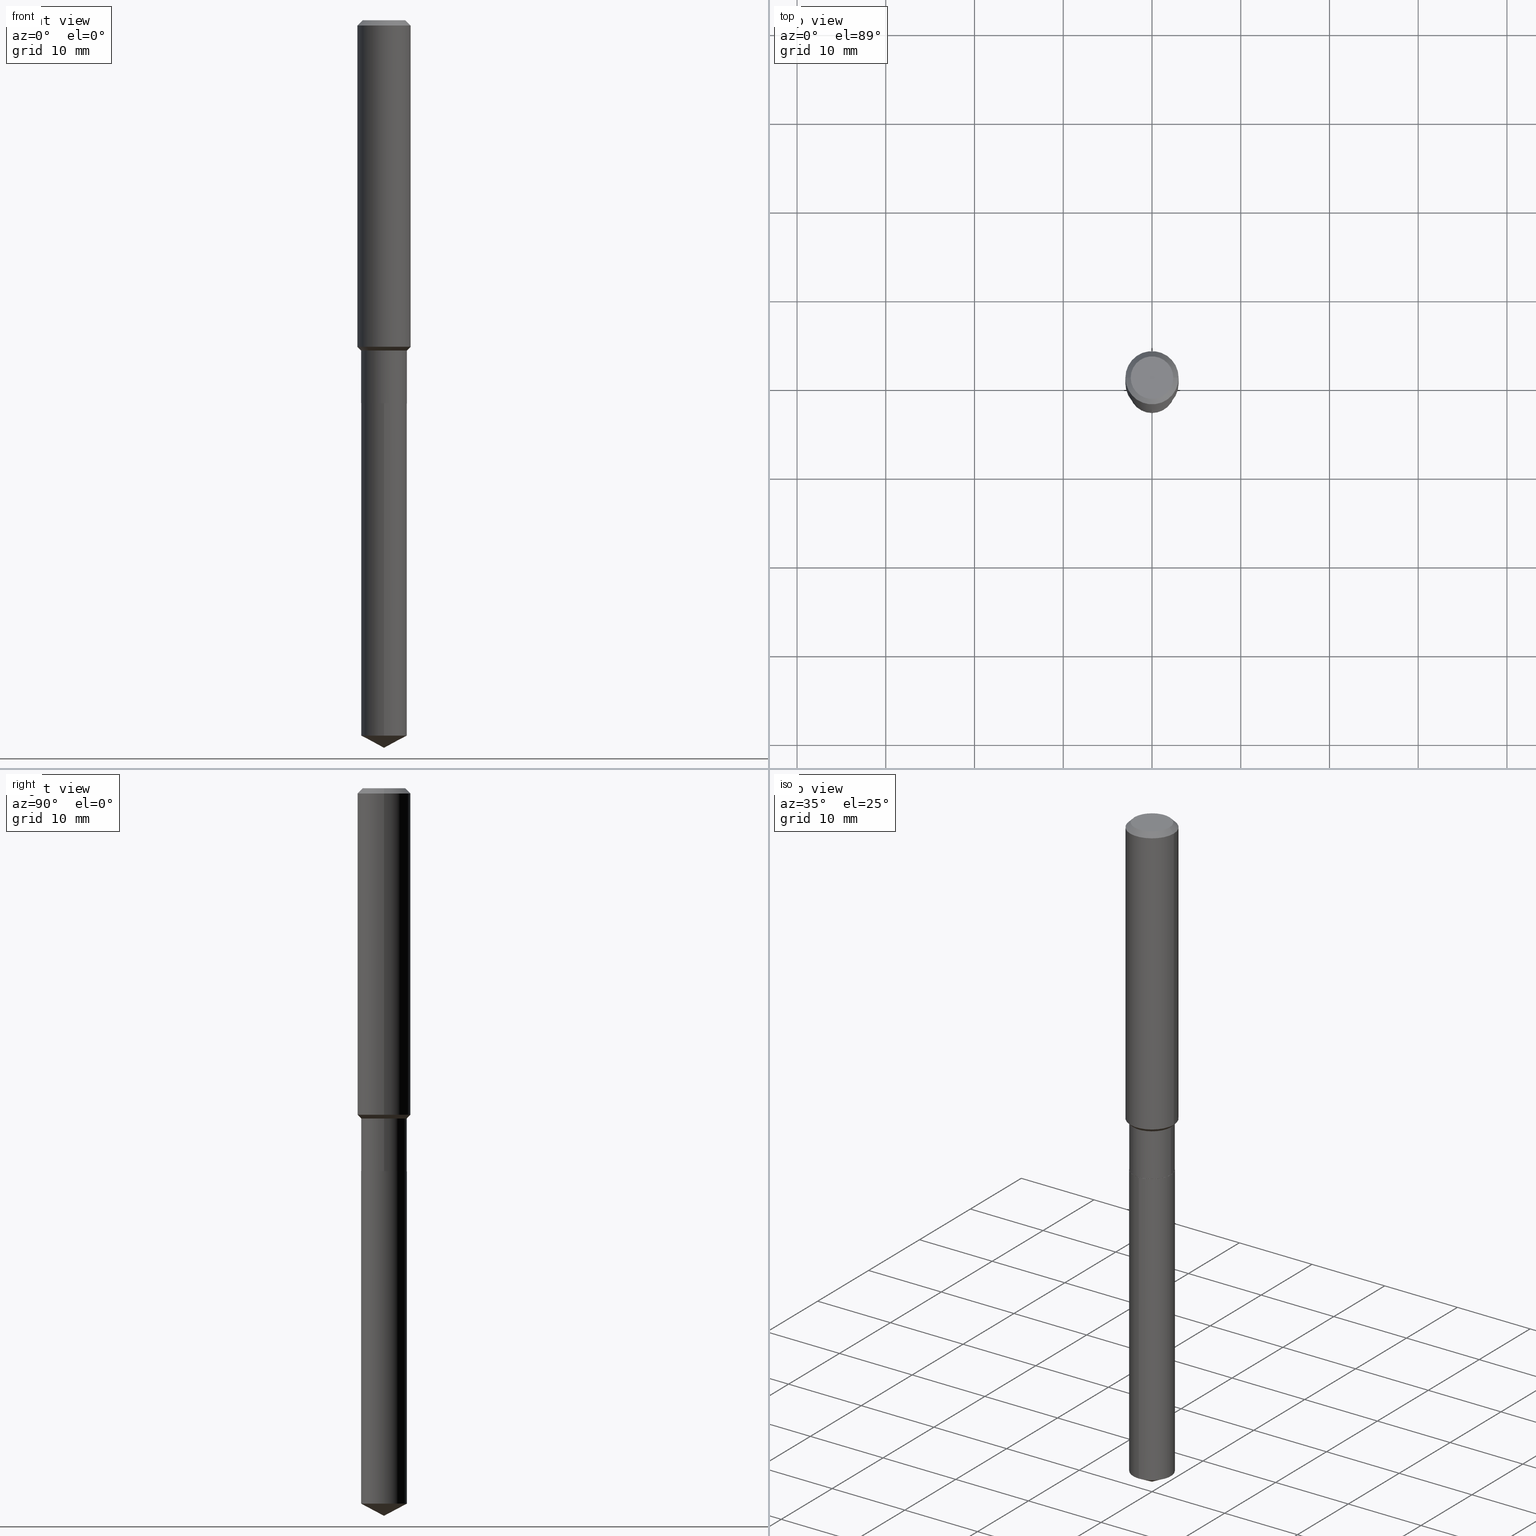
[diagram: canonical four-view strip — front | top / right | iso, engineering-drawing reading convention]
A machine part, canonical four-view strip (front | top / right | iso — engineering-drawing reading convention). The complete STEP part file that produces these views, byte-faithful:
ISO-10303-21;
HEADER;
FILE_DESCRIPTION (( 'STEP AP203' ),
    '1' );
FILE_NAME ('55007.STEP',
    '2024-04-24T16:15:21',
    ( '' ),
    ( '' ),
    'SwSTEP 2.0',
    'SolidWorks 2023',
    '' );
FILE_SCHEMA (( 'CONFIG_CONTROL_DESIGN' ));
ENDSEC;

DATA;
#1 = EDGE_CURVE ( 'NONE', #59, #233, #270, .T. ) ;
#2 = EDGE_LOOP ( 'NONE', ( #263, #291 ) ) ;
#3 = DIRECTION ( 'NONE',  ( 1.000000000000000000, -6.982962677686269077E-15, 0.000000000000000000 ) ) ;
#4 = ORIENTED_EDGE ( 'NONE', *, *, #102, .T. ) ;
#5 = VERTEX_POINT ( 'NONE', #242 ) ;
#6 = AXIS2_PLACEMENT_3D ( 'NONE', #176, #335, #294 ) ;
#7 = DIRECTION ( 'NONE',  ( -2.445641642921582750E-29, 3.491233826799298871E-15, 1.000000000000000000 ) ) ;
#8 = DATE_AND_TIME ( #126, #99 ) ;
#9 = EDGE_CURVE ( 'NONE', #254, #197, #18, .T. ) ;
#10 = DIRECTION ( 'NONE',  ( -2.445641642921582750E-29, 3.491233826799298871E-15, 1.000000000000000000 ) ) ;
#11 = DIRECTION ( 'NONE',  ( 1.000000000000000000, -6.982962677686266711E-15, 0.000000000000000000 ) ) ;
#12 = AXIS2_PLACEMENT_3D ( 'NONE', #431, #10, #356 ) ;
#13 = APPROVAL_PERSON_ORGANIZATION ( #258, #386, #252 ) ;
#14 = ADVANCED_FACE ( 'NONE', ( #434 ), #244, .T. ) ;
#15 = CARTESIAN_POINT ( 'NONE',  ( -0.09447999999999998066, 7.009847083995354710E-16, -2.700101262760559836E-17 ) ) ;
#16 = DIRECTION ( 'NONE',  ( -6.982962677686266711E-15, -1.000000000000000000, 2.690150658458161520E-15 ) ) ;
#17 = LINE ( 'NONE', #373, #474 ) ;
#18 = LINE ( 'NONE', #326, #29 ) ;
#19 =( CONVERSION_BASED_UNIT ( 'INCH', #453 ) LENGTH_UNIT ( ) NAMED_UNIT ( #58 ) );
#20 = CIRCLE ( 'NONE', #378, 0.1181000000000001632 ) ;
#21 = AXIS2_PLACEMENT_3D ( 'NONE', #283, #436, #450 ) ;
#22 = PRODUCT_DEFINITION_FORMATION_WITH_SPECIFIED_SOURCE ( 'ANY', '', #486, .NOT_KNOWN. ) ;
#23 = ADVANCED_FACE ( 'NONE', ( #54 ), #163, .T. ) ;
#24 = ORIENTED_EDGE ( 'NONE', *, *, #168, .T. ) ;
#25 = ORIENTED_EDGE ( 'NONE', *, *, #321, .T. ) ;
#26 = DIRECTION ( 'NONE',  ( 1.000000000000000000, -6.982962677686267499E-15, 4.875432709231658792E-29 ) ) ;
#27 = APPROVAL_DATE_TIME ( #328, #187 ) ;
#28 = CARTESIAN_POINT ( 'NONE',  ( -0.1181000000000001632, -4.219830914984096182E-15, -1.448950000000000182 ) ) ;
#29 = VECTOR ( 'NONE', #396, 39.37007874015748143 ) ;
#30 = LOCAL_TIME ( 12, 15, 21.00000000000000000, #157 ) ;
#31 = EDGE_CURVE ( 'NONE', #77, #254, #470, .T. ) ;
#32 = DIRECTION ( 'NONE',  ( 1.000000000000000000, -6.982962677686266711E-15, 0.000000000000000000 ) ) ;
#33 = ORIENTED_EDGE ( 'NONE', *, *, #9, .F. ) ;
#34 = ORIENTED_EDGE ( 'NONE', *, *, #198, .F. ) ;
#35 = VECTOR ( 'NONE', #444, 39.37007874015748143 ) ;
#36 = ORGANIZATION ( 'UNSPECIFIED', 'UNSPECIFIED', '' ) ;
#37 = LOCAL_TIME ( 12, 15, 21.00000000000000000, #441 ) ;
#38 = ORIENTED_EDGE ( 'NONE', *, *, #246, .F. ) ;
#39 = DIRECTION ( 'NONE',  ( 1.000000000000000000, 0.000000000000000000, 0.000000000000000000 ) ) ;
#40 = ORIENTED_EDGE ( 'NONE', *, *, #348, .T. ) ;
#41 = DIRECTION ( 'NONE',  ( -2.445468806185136597E-29, 3.491481338843145583E-15, 1.000000000000000000 ) ) ;
#42 = ORIENTED_EDGE ( 'NONE', *, *, #80, .T. ) ;
#43 = APPROVAL_STATUS ( 'not_yet_approved' ) ;
#44 = AXIS2_PLACEMENT_3D ( 'NONE', #136, #286, #322 ) ;
#45 = CIRCLE ( 'NONE', #146, 0.1010500000000000009 ) ;
#46 = EDGE_CURVE ( 'NONE', #106, #5, #108, .T. ) ;
#47 = CC_DESIGN_SECURITY_CLASSIFICATION ( #224, ( #22 ) ) ;
#48 = DIRECTION ( 'NONE',  ( -6.982962677686266711E-15, -1.000000000000000000, 2.690150658458161520E-15 ) ) ;
#49 = DIRECTION ( 'NONE',  ( -2.445641642921582470E-29, 3.491233826799298476E-15, 1.000000000000000000 ) ) ;
#50 = ORIENTED_EDGE ( 'NONE', *, *, #256, .T. ) ;
#51 = CARTESIAN_POINT ( 'NONE',  ( 0.000000000000000000, 0.000000000000000000, 0.000000000000000000 ) ) ;
#52 = LINE ( 'NONE', #395, #117 ) ;
#53 = ADVANCED_FACE ( 'NONE', ( #428 ), #92, .T. ) ;
#54 = FACE_OUTER_BOUND ( 'NONE', #400, .T. ) ;
#55 = AXIS2_PLACEMENT_3D ( 'NONE', #201, #359, #11 ) ;
#56 = CARTESIAN_POINT ( 'NONE',  ( 4.155096048589166181E-29, -5.932375942828389297E-15, -1.699100000000000277 ) ) ;
#57 = DATE_AND_TIME ( #487, #427 ) ;
#58 = DIMENSIONAL_EXPONENTS ( 1.000000000000000000, 0.000000000000000000, 0.000000000000000000, 0.000000000000000000, 0.000000000000000000, 0.000000000000000000, 0.000000000000000000 ) ;
#59 = VERTEX_POINT ( 'NONE', #130 ) ;
#60 = EDGE_CURVE ( 'NONE', #239, #148, #166, .T. ) ;
#61 = DATE_AND_TIME ( #408, #37 ) ;
#62 = VECTOR ( 'NONE', #383, 39.37007874015748143 ) ;
#63 = CARTESIAN_POINT ( 'NONE',  ( 7.215561481644231637E-16, 0.1015499999999940756, -1.699100000000000499 ) ) ;
#64 = CIRCLE ( 'NONE', #403, 0.1015500000000000014 ) ;
#65 = CARTESIAN_POINT ( 'NONE',  ( 0.1181000000000001632, -5.883669778151525797E-15, -1.448950000000000182 ) ) ;
#66 = ORIENTED_EDGE ( 'NONE', *, *, #289, .F. ) ;
#67 = ADVANCED_FACE ( 'NONE', ( #295 ), #133, .T. ) ;
#68 = ORIENTED_EDGE ( 'NONE', *, *, #430, .F. ) ;
#69 = CALENDAR_DATE ( 2024, 24, 4 ) ;
#70 = CARTESIAN_POINT ( 'NONE',  ( 5.776197320209327532E-31, -8.246878922347559293E-17, -0.02362000000000014088 ) ) ;
#71 = VECTOR ( 'NONE', #49, 39.37007874015748143 ) ;
#72 = ORIENTED_EDGE ( 'NONE', *, *, #488, .T. ) ;
#73 = DIRECTION ( 'NONE',  ( -2.445468806185136597E-29, 3.491481338843145583E-15, 1.000000000000000000 ) ) ;
#74 = EDGE_CURVE ( 'NONE', #192, #455, #17, .T. ) ;
#75 = DIRECTION ( 'NONE',  ( 0.7071067811865460184, -7.319954787623251312E-15, -0.7071067811865490160 ) ) ;
#76 = AXIS2_PLACEMENT_3D ( 'NONE', #183, #73, #3 ) ;
#77 = VERTEX_POINT ( 'NONE', #98 ) ;
#78 = DIRECTION ( 'NONE',  ( -2.445468806185136597E-29, 3.491481338843145583E-15, 1.000000000000000000 ) ) ;
#79 = CARTESIAN_POINT ( 'NONE',  ( 4.155096048589166181E-29, -5.932375942828389297E-15, -1.699100000000000277 ) ) ;
#80 = EDGE_CURVE ( 'NONE', #296, #485, #319, .T. ) ;
#81 = ORIENTED_EDGE ( 'NONE', *, *, #198, .T. ) ;
#82 = PERSON_AND_ORGANIZATION_ROLE ( 'creator' ) ;
#83 = ORIENTED_EDGE ( 'NONE', *, *, #230, .F. ) ;
#84 = CIRCLE ( 'NONE', #435, 0.1015500000000000014 ) ;
#85 = CARTESIAN_POINT ( 'NONE',  ( 7.762184909023018875E-29, -1.108161384620890165E-14, -3.174004907214777127 ) ) ;
#86 = ORIENTED_EDGE ( 'NONE', *, *, #80, .F. ) ;
#87 = FACE_OUTER_BOUND ( 'NONE', #424, .T. ) ;
#88 = ADVANCED_FACE ( 'NONE', ( #414 ), #480, .F. ) ;
#89 = ORIENTED_EDGE ( 'NONE', *, *, #479, .T. ) ;
#90 = CARTESIAN_POINT ( 'NONE',  ( 0.1015499999999999736, -5.825885761993670479E-15, -1.465500000000000247 ) ) ;
#91 = CARTESIAN_POINT ( 'NONE',  ( 3.543362026721954415E-29, -5.058981885916776746E-15, -1.448950000000000182 ) ) ;
#92 = CONICAL_SURFACE ( 'NONE', #255, 0.1180999999999999966, 0.7853981633974461696 ) ;
#93 = CIRCLE ( 'NONE', #162, 0.1015500000000000014 ) ;
#94 = CARTESIAN_POINT ( 'NONE',  ( 7.762184909023018875E-29, -1.108161384620890165E-14, -3.174004907214777127 ) ) ;
#95 = EDGE_CURVE ( 'NONE', #197, #332, #20, .T. ) ;
#96 = DIRECTION ( 'NONE',  ( -1.000000000000000000, 6.982962677686265922E-15, -4.876176775795935793E-29 ) ) ;
#97 = DIRECTION ( 'NONE',  ( -2.445468806185136877E-29, 3.491481338843145188E-15, 1.000000000000000000 ) ) ;
#98 = CARTESIAN_POINT ( 'NONE',  ( 0.1015500000000000014, -6.639750062078007786E-15, -1.698600000000000332 ) ) ;
#99 = LOCAL_TIME ( 12, 15, 21.00000000000000000, #193 ) ;
#100 = DESIGN_CONTEXT ( 'detailed design', #110, 'design' ) ;
#101 = DIRECTION ( 'NONE',  ( -6.982962677686268288E-15, -1.000000000000000000, 3.541896320645553769E-15 ) ) ;
#102 = EDGE_CURVE ( 'NONE', #197, #233, #213, .T. ) ;
#103 = ORIENTED_EDGE ( 'NONE', *, *, #321, .F. ) ;
#104 = DIRECTION ( 'NONE',  ( 1.000000000000000000, -6.982962677686264344E-15, 0.000000000000000000 ) ) ;
#105 = CARTESIAN_POINT ( 'NONE',  ( 3.583834535464318409E-29, -5.116765902074630486E-15, -1.465500000000000247 ) ) ;
#106 = VERTEX_POINT ( 'NONE', #473 ) ;
#107 = APPROVAL_STATUS ( 'not_yet_approved' ) ;
#108 = CIRCLE ( 'NONE', #308, 0.1015500000000000014 ) ;
#109 = AXIS2_PLACEMENT_3D ( 'NONE', #243, #279, #324 ) ;
#110 = APPLICATION_CONTEXT ( 'configuration controlled 3d designs of mechanical parts and assemblies' ) ;
#111 = VERTEX_POINT ( 'NONE', #284 ) ;
#112 = ORIENTED_EDGE ( 'NONE', *, *, #256, .F. ) ;
#113 = EDGE_CURVE ( 'NONE', #111, #455, #301, .T. ) ;
#114 = ORIENTED_EDGE ( 'NONE', *, *, #1, .F. ) ;
#115 = VECTOR ( 'NONE', #209, 39.37007874015748143 ) ;
#116 = ORIENTED_EDGE ( 'NONE', *, *, #312, .F. ) ;
#117 = VECTOR ( 'NONE', #158, 39.37007874015748143 ) ;
#118 = PERSON_AND_ORGANIZATION ( #489, #36 ) ;
#119 = ADVANCED_FACE ( 'NONE', ( #87 ), #353, .T. ) ;
#120 = DIRECTION ( 'NONE',  ( 1.000000000000000000, -6.982962677686266711E-15, 0.000000000000000000 ) ) ;
#121 = CARTESIAN_POINT ( 'NONE',  ( -0.1010500000000000009, -5.211723281168696260E-15, -1.699100000000000277 ) ) ;
#122 = ORIENTED_EDGE ( 'NONE', *, *, #240, .F. ) ;
#123 = MECHANICAL_CONTEXT ( 'NONE', #333, 'mechanical' ) ;
#124 = CARTESIAN_POINT ( 'NONE',  ( 4.153873314186073379E-29, -5.930630202158967793E-15, -1.698600000000000332 ) ) ;
#125 = ORIENTED_EDGE ( 'NONE', *, *, #31, .F. ) ;
#126 = CALENDAR_DATE ( 2024, 24, 4 ) ;
#127 = CARTESIAN_POINT ( 'NONE',  ( 7.215561481644593527E-16, 0.1015499999999889269, -3.174004907214778015 ) ) ;
#128 = ADVANCED_FACE ( 'NONE', ( #167 ), #135, .F. ) ;
#129 = DIRECTION ( 'NONE',  ( -2.445468806185136597E-29, 3.491481338843145583E-15, 1.000000000000000000 ) ) ;
#130 = CARTESIAN_POINT ( 'NONE',  ( 0.09447999999999998066, -7.704367267948738690E-16, -2.700101262759583929E-17 ) ) ;
#131 = DIRECTION ( 'NONE',  ( -2.445468806185136597E-29, 3.491481338843145583E-15, 1.000000000000000000 ) ) ;
#132 = DIRECTION ( 'NONE',  ( -2.445468806185136597E-29, 3.491481338843145583E-15, 1.000000000000000000 ) ) ;
#133 = CONICAL_SURFACE ( 'NONE', #367, 0.1015499999999999736, 0.7853981633974503884 ) ;
#134 = CIRCLE ( 'NONE', #109, 0.1180999999999999966 ) ;
#135 = PLANE ( 'NONE',  #177 ) ;
#136 = CARTESIAN_POINT ( 'NONE',  ( 0.000000000000000000, 0.000000000000000000, 0.000000000000000000 ) ) ;
#137 = ORIENTED_EDGE ( 'NONE', *, *, #479, .F. ) ;
#138 = DIRECTION ( 'NONE',  ( 1.000000000000000000, -6.982962677686267499E-15, 4.875432709231658792E-29 ) ) ;
#139 = CC_DESIGN_DATE_AND_TIME_ASSIGNMENT ( #415, #175, ( #172 ) ) ;
#140 = ORIENTED_EDGE ( 'NONE', *, *, #488, .F. ) ;
#141 = PERSON_AND_ORGANIZATION_ROLE ( 'classification_officer' ) ;
#142 = LINE ( 'NONE', #223, #155 ) ;
#143 = CARTESIAN_POINT ( 'NONE',  ( 6.603013411620882309E-46, -9.427353171913646324E-32, -2.700101262760083747E-17 ) ) ;
#144 = CARTESIAN_POINT ( 'NONE',  ( -0.1180999999999999966, -1.731574366637446524E-15, -0.02362000000000014088 ) ) ;
#145 = DIRECTION ( 'NONE',  ( 0.7071067811866199593, -2.468850131083015945E-15, 0.7071067811864750752 ) ) ;
#146 = AXIS2_PLACEMENT_3D ( 'NONE', #79, #365, #310 ) ;
#147 = EDGE_CURVE ( 'NONE', #463, #77, #84, .T. ) ;
#148 = VERTEX_POINT ( 'NONE', #144 ) ;
#149 = CARTESIAN_POINT ( 'NONE',  ( 4.153873314186073379E-29, -5.930630202158967793E-15, -1.698600000000000332 ) ) ;
#150 = ORIENTED_EDGE ( 'NONE', *, *, #113, .F. ) ;
#151 = ORIENTED_EDGE ( 'NONE', *, *, #46, .F. ) ;
#152 = APPROVAL ( #43, 'UNSPECIFIED' ) ;
#153 = DIRECTION ( 'NONE',  ( -2.445468806185136597E-29, 3.491481338843145583E-15, 1.000000000000000000 ) ) ;
#154 = AXIS2_PLACEMENT_3D ( 'NONE', #51, #200, #251 ) ;
#155 = VECTOR ( 'NONE', #182, 39.37007874015748143 ) ;
#156 = CARTESIAN_POINT ( 'NONE',  ( 0.000000000000000000, 0.000000000000000000, 0.000000000000000000 ) ) ;
#157 = COORDINATED_UNIVERSAL_TIME_OFFSET ( 5, 0, .BEHIND. ) ;
#158 = DIRECTION ( 'NONE',  ( -2.445468806185136877E-29, 3.491481338843145188E-15, 1.000000000000000000 ) ) ;
#159 = DIRECTION ( 'NONE',  ( -6.165590087286837607E-15, -0.8829475928589267664, 0.4694715627858912499 ) ) ;
#160 = EDGE_CURVE ( 'NONE', #239, #59, #220, .T. ) ;
#161 = CLOSED_SHELL ( 'NONE', ( #281, #298, #397, #439, #128 ) ) ;
#162 = AXIS2_PLACEMENT_3D ( 'NONE', #323, #277, #48 ) ;
#163 = CYLINDRICAL_SURFACE ( 'NONE', #44, 0.1015499999999999875 ) ;
#164 = DIRECTION ( 'NONE',  ( 1.000000000000000000, -6.982962677686269077E-15, 0.000000000000000000 ) ) ;
#165 = CARTESIAN_POINT ( 'NONE',  ( -0.1015500000000000014, -4.802141903952417194E-15, -1.698600000000000332 ) ) ;
#166 = LINE ( 'NONE', #478, #35 ) ;
#167 = FACE_OUTER_BOUND ( 'NONE', #2, .T. ) ;
#168 = EDGE_CURVE ( 'NONE', #485, #463, #338, .T. ) ;
#169 = DIRECTION ( 'NONE',  ( -2.438088387897960049E-29, 3.491481338843145188E-15, 1.000000000000000000 ) ) ;
#170 = DIRECTION ( 'NONE',  ( -2.445468806185136597E-29, 3.491481338843145583E-15, 1.000000000000000000 ) ) ;
#171 = CONICAL_SURFACE ( 'NONE', #309, 0.1010500000000000009, 0.7853981633975507526 ) ;
#172 = PRODUCT_DEFINITION ( 'UNKNOWN', '', #22, #100 ) ;
#173 = FACE_OUTER_BOUND ( 'NONE', #304, .T. ) ;
#174 = ORIENTED_EDGE ( 'NONE', *, *, #74, .T. ) ;
#175 = DATE_TIME_ROLE ( 'creation_date' ) ;
#176 = CARTESIAN_POINT ( 'NONE',  ( 5.776197320209327532E-31, -8.246878922347559293E-17, -0.02362000000000014088 ) ) ;
#177 = AXIS2_PLACEMENT_3D ( 'NONE', #406, #334, #217 ) ;
#178 = DIRECTION ( 'NONE',  ( 2.438088387897960049E-29, -3.491481338843145188E-15, -1.000000000000000000 ) ) ;
#179 = CONICAL_SURFACE ( 'NONE', #76, 0.1010500000000000009, 0.7853981633975507526 ) ;
#180 = ORIENTED_EDGE ( 'NONE', *, *, #305, .T. ) ;
#181 = MANIFOLD_SOLID_BREP ( 'Body-Move/Copy2[1]', #161 ) ;
#182 = DIRECTION ( 'NONE',  ( -0.7071067811865490160, 7.493145998870360471E-15, 0.7071067811865460184 ) ) ;
#183 = CARTESIAN_POINT ( 'NONE',  ( 4.155096048589166181E-29, -5.932375942828389297E-15, -1.699100000000000277 ) ) ;
#184 = ORIENTED_EDGE ( 'NONE', *, *, #419, .T. ) ;
#185 = CARTESIAN_POINT ( 'NONE',  ( 0.1180999999999999966, -9.071566814582237199E-16, -0.02362000000000014088 ) ) ;
#186 = EDGE_LOOP ( 'NONE', ( #449, #25, #137, #490 ) ) ;
#187 = APPROVAL ( #107, 'UNSPECIFIED' ) ;
#188 = ORIENTED_EDGE ( 'NONE', *, *, #168, .F. ) ;
#189 = ORIENTED_EDGE ( 'NONE', *, *, #262, .F. ) ;
#190 = DIRECTION ( 'NONE',  ( 1.000000000000000000, -6.982962677686264344E-15, 0.000000000000000000 ) ) ;
#191 = CIRCLE ( 'NONE', #379, 0.1180999999999999966 ) ;
#192 = VERTEX_POINT ( 'NONE', #410 ) ;
#193 = COORDINATED_UNIVERSAL_TIME_OFFSET ( 5, 0, .BEHIND. ) ;
#194 = ADVANCED_BREP_SHAPE_REPRESENTATION ( '55007', ( #181, #342, #409 ), #347 ) ;
#195 = CYLINDRICAL_SURFACE ( 'NONE', #12, 0.1015500000000000014 ) ;
#196 = CARTESIAN_POINT ( 'NONE',  ( 4.155096048589166181E-29, -5.932375942828389297E-15, -1.699100000000000277 ) ) ;
#197 = VERTEX_POINT ( 'NONE', #65 ) ;
#198 = EDGE_CURVE ( 'NONE', #59, #239, #426, .T. ) ;
#199 = CARTESIAN_POINT ( 'NONE',  ( 3.583834535464318409E-29, -5.116765902074630486E-15, -1.465500000000000247 ) ) ;
#200 = DIRECTION ( 'NONE',  ( -2.445468806185136597E-29, 3.491481338843145583E-15, 1.000000000000000000 ) ) ;
#201 = CARTESIAN_POINT ( 'NONE',  ( 3.583834535464318409E-29, -5.116765902074630486E-15, -1.465500000000000247 ) ) ;
#202 = AXIS2_PLACEMENT_3D ( 'NONE', #399, #170, #475 ) ;
#203 = DIRECTION ( 'NONE',  ( 2.445468806185136597E-29, -3.491481338843145583E-15, -1.000000000000000000 ) ) ;
#204 = CIRCLE ( 'NONE', #361, 0.1015500000000000014 ) ;
#205 = CYLINDRICAL_SURFACE ( 'NONE', #266, 0.1015500000000000014 ) ;
#206 = ADVANCED_FACE ( 'NONE', ( #173 ), #171, .T. ) ;
#207 = CARTESIAN_POINT ( 'NONE',  ( 3.301506705810441154E-46, -4.713676585956823162E-32, -1.350050631380041873E-17 ) ) ;
#208 = DATE_TIME_ROLE ( 'classification_date' ) ;
#209 = DIRECTION ( 'NONE',  ( -2.445468806185136877E-29, 3.491481338843145188E-15, 1.000000000000000000 ) ) ;
#210 = AXIS2_PLACEMENT_3D ( 'NONE', #143, #451, #138 ) ;
#211 = APPROVAL_DATE_TIME ( #61, #386 ) ;
#212 = FACE_OUTER_BOUND ( 'NONE', #268, .T. ) ;
#213 = LINE ( 'NONE', #362, #115 ) ;
#214 = ORIENTED_EDGE ( 'NONE', *, *, #147, .T. ) ;
#215 = LINE ( 'NONE', #63, #446 ) ;
#216 = EDGE_CURVE ( 'NONE', #192, #111, #393, .T. ) ;
#217 = DIRECTION ( 'NONE',  ( 6.982962677686265922E-15, 1.000000000000000000, -3.491233826799298476E-15 ) ) ;
#218 = DIRECTION ( 'NONE',  ( -2.445641642921582470E-29, 3.491233826799298476E-15, 1.000000000000000000 ) ) ;
#219 = CARTESIAN_POINT ( 'NONE',  ( -0.1010500000000000009, -5.214372508342807461E-15, -1.699100000000000277 ) ) ;
#220 = CIRCLE ( 'NONE', #264, 0.09447999999999998066 ) ;
#221 = PERSON_AND_ORGANIZATION_ROLE ( 'creator' ) ;
#222 = AXIS2_PLACEMENT_3D ( 'NONE', #105, #261, #416 ) ;
#223 = CARTESIAN_POINT ( 'NONE',  ( -0.1015499999999999736, -4.395209753910248540E-15, -1.465500000000000247 ) ) ;
#224 = SECURITY_CLASSIFICATION ( '', '', #287 ) ;
#225 = ORIENTED_EDGE ( 'NONE', *, *, #113, .T. ) ;
#226 = ADVANCED_FACE ( 'NONE', ( #318 ), #179, .T. ) ;
#227 = DIRECTION ( 'NONE',  ( -2.445468806185136597E-29, 3.491481338843145583E-15, 1.000000000000000000 ) ) ;
#228 = ORIENTED_EDGE ( 'NONE', *, *, #305, .F. ) ;
#229 =( NAMED_UNIT ( * ) PLANE_ANGLE_UNIT ( ) SI_UNIT ( $, .RADIAN. ) );
#230 = EDGE_CURVE ( 'NONE', #296, #77, #271, .T. ) ;
#231 = AXIS2_PLACEMENT_3D ( 'NONE', #402, #41, #237 ) ;
#232 = ORIENTED_EDGE ( 'NONE', *, *, #312, .T. ) ;
#233 = VERTEX_POINT ( 'NONE', #185 ) ;
#234 = PRODUCT_DEFINITION_SHAPE ( 'NONE', 'NONE',  #172 ) ;
#235 = ORIENTED_EDGE ( 'NONE', *, *, #95, .F. ) ;
#236 = APPLICATION_PROTOCOL_DEFINITION ( 'international standard', 'config_control_design', 1994, #110 ) ;
#237 = DIRECTION ( 'NONE',  ( 1.000000000000000000, -6.982962677686263555E-15, 0.000000000000000000 ) ) ;
#238 = AXIS2_PLACEMENT_3D ( 'NONE', #476, #448, #101 ) ;
#239 = VERTEX_POINT ( 'NONE', #15 ) ;
#240 = EDGE_CURVE ( 'NONE', #254, #468, #337, .T. ) ;
#241 = CARTESIAN_POINT ( 'NONE',  ( 0.1010500000000000009, -6.638004321408586283E-15, -1.699100000000000277 ) ) ;
#242 = CARTESIAN_POINT ( 'NONE',  ( 7.215561481644595499E-16, 0.1015499999999940756, -1.699100000000000499 ) ) ;
#243 = CARTESIAN_POINT ( 'NONE',  ( 5.776197320209327532E-31, -8.246878922347559293E-17, -0.02362000000000014088 ) ) ;
#244 = CYLINDRICAL_SURFACE ( 'NONE', #202, 0.1181000000000000799 ) ;
#245 = ORIENTED_EDGE ( 'NONE', *, *, #147, .F. ) ;
#246 = EDGE_CURVE ( 'NONE', #455, #111, #204, .T. ) ;
#247 = CARTESIAN_POINT ( 'NONE',  ( 0.1015499999999999875, -7.091198599190402890E-16, 4.951757515820772372E-30 ) ) ;
#248 = CIRCLE ( 'NONE', #231, 0.1181000000000001632 ) ;
#249 = DIRECTION ( 'NONE',  ( -1.000000000000000000, 6.982962677686266711E-15, 0.000000000000000000 ) ) ;
#250 = DIRECTION ( 'NONE',  ( -2.445641642921582750E-29, 3.491233826799298871E-15, 1.000000000000000000 ) ) ;
#251 = DIRECTION ( 'NONE',  ( 1.000000000000000000, -6.982962677686266711E-15, 4.876176775795935793E-29 ) ) ;
#252 = APPROVAL_ROLE ( '' ) ;
#253 = CARTESIAN_POINT ( 'NONE',  ( 4.155096048589166181E-29, -5.932375942828389297E-15, -1.699100000000000277 ) ) ;
#254 = VERTEX_POINT ( 'NONE', #90 ) ;
#255 = AXIS2_PLACEMENT_3D ( 'NONE', #280, #203, #249 ) ;
#256 = EDGE_CURVE ( 'NONE', #332, #197, #248, .T. ) ;
#257 = CARTESIAN_POINT ( 'NONE',  ( 4.155096048589166181E-29, -5.932375942828389297E-15, -1.699100000000000277 ) ) ;
#258 = PERSON_AND_ORGANIZATION ( #489, #36 ) ;
#259 = ORIENTED_EDGE ( 'NONE', *, *, #289, .T. ) ;
#260 = APPROVAL_ROLE ( '' ) ;
#261 = DIRECTION ( 'NONE',  ( -2.445468806185136597E-29, 3.491481338843145583E-15, 1.000000000000000000 ) ) ;
#262 = EDGE_CURVE ( 'NONE', #5, #106, #93, .T. ) ;
#263 = ORIENTED_EDGE ( 'NONE', *, *, #46, .T. ) ;
#264 = AXIS2_PLACEMENT_3D ( 'NONE', #299, #227, #26 ) ;
#265 = APPROVAL_STATUS ( 'not_yet_approved' ) ;
#266 = AXIS2_PLACEMENT_3D ( 'NONE', #196, #363, #16 ) ;
#267 = CC_DESIGN_APPROVAL ( #152, ( #172 ) ) ;
#268 = EDGE_LOOP ( 'NONE', ( #114, #429, #394, #306 ) ) ;
#269 = CC_DESIGN_PERSON_AND_ORGANIZATION_ASSIGNMENT ( #118, #316, ( #486 ) ) ;
#270 = LINE ( 'NONE', #420, #325 ) ;
#271 = LINE ( 'NONE', #345, #392 ) ;
#272 = AXIS2_PLACEMENT_3D ( 'NONE', #465, #7, #472 ) ;
#273 = ORIENTED_EDGE ( 'NONE', *, *, #1, .T. ) ;
#274 = ORIENTED_EDGE ( 'NONE', *, *, #413, .F. ) ;
#275 = EDGE_LOOP ( 'NONE', ( #311, #349, #38 ) ) ;
#276 = APPROVAL_DATE_TIME ( #8, #152 ) ;
#277 = DIRECTION ( 'NONE',  ( -2.445641642921582750E-29, 3.491233826799298871E-15, 1.000000000000000000 ) ) ;
#278 = VECTOR ( 'NONE', #159, 39.37007874015747433 ) ;
#279 = DIRECTION ( 'NONE',  ( -2.445468806185136597E-29, 3.491481338843145583E-15, 1.000000000000000000 ) ) ;
#280 = CARTESIAN_POINT ( 'NONE',  ( 5.776197320209327532E-31, -8.246878922347559293E-17, -0.02362000000000014088 ) ) ;
#281 = ADVANCED_FACE ( 'NONE', ( #462 ), #195, .T. ) ;
#282 = DIRECTION ( 'NONE',  ( 1.000000000000000000, -6.982962677686266711E-15, 0.000000000000000000 ) ) ;
#283 = CARTESIAN_POINT ( 'NONE',  ( 0.000000000000000000, 0.000000000000000000, 0.000000000000000000 ) ) ;
#284 = CARTESIAN_POINT ( 'NONE',  ( -7.091198599189627834E-16, -0.1015500000000110897, -3.174004907214776683 ) ) ;
#285 = CC_DESIGN_APPROVAL ( #187, ( #22 ) ) ;
#286 = DIRECTION ( 'NONE',  ( -2.445468806185136597E-29, 3.491481338843145583E-15, 1.000000000000000000 ) ) ;
#287 = SECURITY_CLASSIFICATION_LEVEL ( 'unclassified' ) ;
#288 = CARTESIAN_POINT ( 'NONE',  ( 4.155096048589166181E-29, -5.932375942828389297E-15, -1.699100000000000277 ) ) ;
#289 = EDGE_CURVE ( 'NONE', #463, #468, #52, .T. ) ;
#290 = DIRECTION ( 'NONE',  ( -2.445468806185136877E-29, 3.491481338843145188E-15, 1.000000000000000000 ) ) ;
#291 = ORIENTED_EDGE ( 'NONE', *, *, #262, .T. ) ;
#292 = AXIS2_PLACEMENT_3D ( 'NONE', #199, #78, #282 ) ;
#293 = PERSON_AND_ORGANIZATION ( #489, #36 ) ;
#294 = DIRECTION ( 'NONE',  ( -1.000000000000000000, 6.982962677686266711E-15, 0.000000000000000000 ) ) ;
#295 = FACE_OUTER_BOUND ( 'NONE', #315, .T. ) ;
#296 = VERTEX_POINT ( 'NONE', #241 ) ;
#297 = FACE_OUTER_BOUND ( 'NONE', #411, .T. ) ;
#298 = ADVANCED_FACE ( 'NONE', ( #317 ), #422, .T. ) ;
#299 = CARTESIAN_POINT ( 'NONE',  ( 6.603013411620882309E-46, -9.427353171913646324E-32, -2.700101262760083747E-17 ) ) ;
#300 = ORIENTED_EDGE ( 'NONE', *, *, #9, .T. ) ;
#301 = CIRCLE ( 'NONE', #391, 0.1015500000000000014 ) ;
#302 = VECTOR ( 'NONE', #97, 39.37007874015748143 ) ;
#303 = LOCAL_TIME ( 12, 15, 21.00000000000000000, #376 ) ;
#304 = EDGE_LOOP ( 'NONE', ( #42, #24, #116, #83 ) ) ;
#305 = EDGE_CURVE ( 'NONE', #468, #254, #417, .T. ) ;
#306 = ORIENTED_EDGE ( 'NONE', *, *, #413, .T. ) ;
#307 = DIRECTION ( 'NONE',  ( 0.000000000000000000, 0.000000000000000000, 1.000000000000000000 ) ) ;
#308 = AXIS2_PLACEMENT_3D ( 'NONE', #288, #484, #442 ) ;
#309 = AXIS2_PLACEMENT_3D ( 'NONE', #56, #129, #433 ) ;
#310 = DIRECTION ( 'NONE',  ( 1.000000000000000000, -6.982962677686269077E-15, 0.000000000000000000 ) ) ;
#311 = ORIENTED_EDGE ( 'NONE', *, *, #74, .F. ) ;
#312 = EDGE_CURVE ( 'NONE', #77, #463, #64, .T. ) ;
#313 = CARTESIAN_POINT ( 'NONE',  ( 3.583834535464318409E-29, -5.116765902074630486E-15, -1.465500000000000247 ) ) ;
#314 = FACE_OUTER_BOUND ( 'NONE', #371, .T. ) ;
#315 = EDGE_LOOP ( 'NONE', ( #385, #180, #300, #112 ) ) ;
#316 = PERSON_AND_ORGANIZATION_ROLE ( 'design_owner' ) ;
#317 = FACE_OUTER_BOUND ( 'NONE', #425, .T. ) ;
#318 = FACE_OUTER_BOUND ( 'NONE', #458, .T. ) ;
#319 = CIRCLE ( 'NONE', #421, 0.1010500000000000009 ) ;
#320 = APPROVAL_PERSON_ORGANIZATION ( #389, #152, #355 ) ;
#321 = EDGE_CURVE ( 'NONE', #332, #148, #412, .T. ) ;
#322 = DIRECTION ( 'NONE',  ( 1.000000000000000000, -6.982962677686266711E-15, 4.876176775795935793E-29 ) ) ;
#323 = CARTESIAN_POINT ( 'NONE',  ( 4.155096048589166181E-29, -5.932375942828389297E-15, -1.699100000000000277 ) ) ;
#324 = DIRECTION ( 'NONE',  ( 1.000000000000000000, -6.982962677686266711E-15, 0.000000000000000000 ) ) ;
#325 = VECTOR ( 'NONE', #75, 39.37007874015748143 ) ;
#326 = CARTESIAN_POINT ( 'NONE',  ( 0.1015499999999999736, -5.825885761993670479E-15, -1.465500000000000247 ) ) ;
#327 = CONICAL_SURFACE ( 'NONE', #238, 74.04434902938368168, 1.082104136236487379 ) ;
#328 = DATE_AND_TIME ( #69, #303 ) ;
#329 = DIRECTION ( 'NONE',  ( -2.445468806185136597E-29, 3.491481338843145583E-15, 1.000000000000000000 ) ) ;
#330 = PRODUCT_RELATED_PRODUCT_CATEGORY ( 'detail', '', ( #486 ) ) ;
#331 = FACE_OUTER_BOUND ( 'NONE', #275, .T. ) ;
#332 = VERTEX_POINT ( 'NONE', #28 ) ;
#333 = APPLICATION_CONTEXT ( 'configuration controlled 3d designs of mechanical parts and assemblies' ) ;
#334 = DIRECTION ( 'NONE',  ( 2.445641642921582470E-29, -3.491233826799298476E-15, -1.000000000000000000 ) ) ;
#335 = DIRECTION ( 'NONE',  ( 2.445468806185136597E-29, -3.491481338843145583E-15, -1.000000000000000000 ) ) ;
#336 = ADVANCED_FACE ( 'NONE', ( #366 ), #377, .F. ) ;
#337 = CIRCLE ( 'NONE', #292, 0.1015499999999999736 ) ;
#338 = LINE ( 'NONE', #219, #62 ) ;
#339 = PERSON_AND_ORGANIZATION ( #489, #36 ) ;
#340 = APPROVAL_PERSON_ORGANIZATION ( #343, #187, #260 ) ;
#341 = FACE_OUTER_BOUND ( 'NONE', #186, .T. ) ;
#342 = MANIFOLD_SOLID_BREP ( 'Body-Move/Copy2[2]', #445 ) ;
#343 = PERSON_AND_ORGANIZATION ( #489, #36 ) ;
#344 = LINE ( 'NONE', #469, #71 ) ;
#345 = CARTESIAN_POINT ( 'NONE',  ( 0.1010500000000000009, -6.638004321408586283E-15, -1.699100000000000277 ) ) ;
#346 = EDGE_LOOP ( 'NONE', ( #382, #81 ) ) ;
#347 =( GEOMETRIC_REPRESENTATION_CONTEXT ( 3 ) GLOBAL_UNCERTAINTY_ASSIGNED_CONTEXT ( ( #370 ) ) GLOBAL_UNIT_ASSIGNED_CONTEXT ( ( #19, #229, #351 ) ) REPRESENTATION_CONTEXT ( 'NONE', 'WORKASPACE' ) );
#348 = EDGE_CURVE ( 'NONE', #455, #5, #215, .T. ) ;
#349 = ORIENTED_EDGE ( 'NONE', *, *, #216, .T. ) ;
#350 = ORIENTED_EDGE ( 'NONE', *, *, #246, .T. ) ;
#351 =( NAMED_UNIT ( * ) SI_UNIT ( $, .STERADIAN. ) SOLID_ANGLE_UNIT ( ) );
#352 = ADVANCED_FACE ( 'NONE', ( #212 ), #460, .T. ) ;
#353 = CYLINDRICAL_SURFACE ( 'NONE', #154, 0.1015499999999999875 ) ;
#354 = ORIENTED_EDGE ( 'NONE', *, *, #230, .T. ) ;
#355 = APPROVAL_ROLE ( '' ) ;
#356 = DIRECTION ( 'NONE',  ( -6.982962677686266711E-15, -1.000000000000000000, 2.690150658458161520E-15 ) ) ;
#357 = CARTESIAN_POINT ( 'NONE',  ( 7.893943889553077736E-29, -1.127054388833553860E-14, -3.228000000000000203 ) ) ;
#358 = ORIENTED_EDGE ( 'NONE', *, *, #216, .F. ) ;
#359 = DIRECTION ( 'NONE',  ( -2.445468806185136597E-29, 3.491481338843145583E-15, 1.000000000000000000 ) ) ;
#360 = CARTESIAN_POINT ( 'NONE',  ( -0.1015499999999999736, -4.802141903952417194E-15, -1.465500000000000247 ) ) ;
#361 = AXIS2_PLACEMENT_3D ( 'NONE', #85, #388, #398 ) ;
#362 = CARTESIAN_POINT ( 'NONE',  ( 0.1181000000000000799, -8.246878922347486570E-16, 5.758764772215004644E-30 ) ) ;
#363 = DIRECTION ( 'NONE',  ( -2.445641642921582750E-29, 3.491233826799298871E-15, 1.000000000000000000 ) ) ;
#364 = CC_DESIGN_PERSON_AND_ORGANIZATION_ASSIGNMENT ( #339, #372, ( #22 ) ) ;
#365 = DIRECTION ( 'NONE',  ( -2.445468806185136597E-29, 3.491481338843145583E-15, 1.000000000000000000 ) ) ;
#366 = FACE_OUTER_BOUND ( 'NONE', #346, .T. ) ;
#367 = AXIS2_PLACEMENT_3D ( 'NONE', #313, #153, #120 ) ;
#368 = AXIS2_PLACEMENT_3D ( 'NONE', #207, #178, #96 ) ;
#369 = SHAPE_DEFINITION_REPRESENTATION ( #234, #194 ) ;
#370 = UNCERTAINTY_MEASURE_WITH_UNIT (LENGTH_MEASURE( 1.000000000000000082E-05 ), #19, 'distance_accuracy_value', 'NONE');
#371 = EDGE_LOOP ( 'NONE', ( #418, #350, #384, #189 ) ) ;
#372 = PERSON_AND_ORGANIZATION_ROLE ( 'design_supplier' ) ;
#373 = CARTESIAN_POINT ( 'NONE',  ( 7.894536373574983676E-29, -1.126970279290813610E-14, -3.228000000000000203 ) ) ;
#374 = CC_DESIGN_PERSON_AND_ORGANIZATION_ASSIGNMENT ( #482, #141, ( #224 ) ) ;
#375 = DIRECTION ( 'NONE',  ( -2.445468806185136597E-29, 3.491481338843145583E-15, 1.000000000000000000 ) ) ;
#376 = COORDINATED_UNIVERSAL_TIME_OFFSET ( 5, 0, .BEHIND. ) ;
#377 = PLANE ( 'NONE',  #368 ) ;
#378 = AXIS2_PLACEMENT_3D ( 'NONE', #91, #132, #437 ) ;
#379 = AXIS2_PLACEMENT_3D ( 'NONE', #70, #381, #32 ) ;
#380 = COORDINATED_UNIVERSAL_TIME_OFFSET ( 5, 0, .BEHIND. ) ;
#381 = DIRECTION ( 'NONE',  ( -2.445468806185136597E-29, 3.491481338843145583E-15, 1.000000000000000000 ) ) ;
#382 = ORIENTED_EDGE ( 'NONE', *, *, #160, .T. ) ;
#383 = DIRECTION ( 'NONE',  ( -0.7071067811866199593, 7.493145998870616062E-15, 0.7071067811864750752 ) ) ;
#384 = ORIENTED_EDGE ( 'NONE', *, *, #430, .T. ) ;
#385 = ORIENTED_EDGE ( 'NONE', *, *, #419, .F. ) ;
#386 = APPROVAL ( #265, 'UNSPECIFIED' ) ;
#387 = EDGE_LOOP ( 'NONE', ( #225, #40, #151, #68 ) ) ;
#388 = DIRECTION ( 'NONE',  ( -2.445641642921582750E-29, 3.491233826799298871E-15, 1.000000000000000000 ) ) ;
#389 = PERSON_AND_ORGANIZATION ( #489, #36 ) ;
#390 =( LENGTH_UNIT ( ) NAMED_UNIT ( * ) SI_UNIT ( $, .METRE. ) );
#391 = AXIS2_PLACEMENT_3D ( 'NONE', #94, #250, #404 ) ;
#392 = VECTOR ( 'NONE', #145, 39.37007874015748143 ) ;
#393 = LINE ( 'NONE', #357, #278 ) ;
#394 = ORIENTED_EDGE ( 'NONE', *, *, #60, .T. ) ;
#395 = CARTESIAN_POINT ( 'NONE',  ( -0.1015499999999999875, 7.215561481643816499E-16, -4.995178584153856401E-30 ) ) ;
#396 = DIRECTION ( 'NONE',  ( 0.7071067811865490160, -2.468850131082272838E-15, 0.7071067811865460184 ) ) ;
#397 = ADVANCED_FACE ( 'NONE', ( #331 ), #327, .T. ) ;
#398 = DIRECTION ( 'NONE',  ( -6.982962677686266711E-15, -1.000000000000000000, 5.380301316916323039E-15 ) ) ;
#399 = CARTESIAN_POINT ( 'NONE',  ( 0.000000000000000000, 0.000000000000000000, 0.000000000000000000 ) ) ;
#400 = EDGE_LOOP ( 'NONE', ( #232, #259, #122, #125 ) ) ;
#401 = VECTOR ( 'NONE', #290, 39.37007874015748143 ) ;
#402 = CARTESIAN_POINT ( 'NONE',  ( 3.543362026721954415E-29, -5.058981885916776746E-15, -1.448950000000000182 ) ) ;
#403 = AXIS2_PLACEMENT_3D ( 'NONE', #124, #131, #190 ) ;
#404 = DIRECTION ( 'NONE',  ( -6.982962677686266711E-15, -1.000000000000000000, 5.380301316916323039E-15 ) ) ;
#405 = ADVANCED_FACE ( 'NONE', ( #341 ), #483, .T. ) ;
#406 = CARTESIAN_POINT ( 'NONE',  ( 4.155096048589166181E-29, -5.932375942828389297E-15, -1.699100000000000277 ) ) ;
#407 = CARTESIAN_POINT ( 'NONE',  ( -0.1181000000000000799, 8.391509709326788873E-16, -5.809262341591047988E-30 ) ) ;
#408 = CALENDAR_DATE ( 2024, 24, 4 ) ;
#409 = AXIS2_PLACEMENT_3D ( 'NONE', #156, #307, #39 ) ;
#410 = CARTESIAN_POINT ( 'NONE',  ( 7.894531223350869974E-29, -1.126970279290813610E-14, -3.228000000000000203 ) ) ;
#411 = EDGE_LOOP ( 'NONE', ( #461, #184, #235, #33 ) ) ;
#412 = LINE ( 'NONE', #407, #302 ) ;
#413 = EDGE_CURVE ( 'NONE', #148, #233, #191, .T. ) ;
#414 = FACE_OUTER_BOUND ( 'NONE', #443, .T. ) ;
#415 = DATE_AND_TIME ( #454, #30 ) ;
#416 = DIRECTION ( 'NONE',  ( 1.000000000000000000, -6.982962677686266711E-15, 0.000000000000000000 ) ) ;
#417 = CIRCLE ( 'NONE', #55, 0.1015499999999999736 ) ;
#418 = ORIENTED_EDGE ( 'NONE', *, *, #348, .F. ) ;
#419 = EDGE_CURVE ( 'NONE', #468, #332, #142, .T. ) ;
#420 = CARTESIAN_POINT ( 'NONE',  ( 0.1180999999999999966, -8.926936027602933910E-16, -0.02362000000000014088 ) ) ;
#421 = AXIS2_PLACEMENT_3D ( 'NONE', #257, #329, #164 ) ;
#422 = CONICAL_SURFACE ( 'NONE', #272, 74.04434902938368168, 1.082104136236487379 ) ;
#423 = ADVANCED_FACE ( 'NONE', ( #297 ), #438, .T. ) ;
#424 = EDGE_LOOP ( 'NONE', ( #66, #214, #447, #228 ) ) ;
#425 = EDGE_LOOP ( 'NONE', ( #358, #174, #150 ) ) ;
#426 = CIRCLE ( 'NONE', #210, 0.09447999999999998066 ) ;
#427 = LOCAL_TIME ( 12, 15, 21.00000000000000000, #380 ) ;
#428 = FACE_OUTER_BOUND ( 'NONE', #456, .T. ) ;
#429 = ORIENTED_EDGE ( 'NONE', *, *, #160, .F. ) ;
#430 = EDGE_CURVE ( 'NONE', #111, #106, #344, .T. ) ;
#431 = CARTESIAN_POINT ( 'NONE',  ( 4.155096048589166181E-29, -5.932375942828389297E-15, -1.699100000000000277 ) ) ;
#432 = DIRECTION ( 'NONE',  ( 1.000000000000000000, -6.982962677686265922E-15, 4.876176775795935793E-29 ) ) ;
#433 = DIRECTION ( 'NONE',  ( 1.000000000000000000, -6.982962677686269077E-15, 0.000000000000000000 ) ) ;
#434 = FACE_OUTER_BOUND ( 'NONE', #452, .T. ) ;
#435 = AXIS2_PLACEMENT_3D ( 'NONE', #149, #375, #104 ) ;
#436 = DIRECTION ( 'NONE',  ( -2.445468806185136597E-29, 3.491481338843145583E-15, 1.000000000000000000 ) ) ;
#437 = DIRECTION ( 'NONE',  ( 1.000000000000000000, -6.982962677686263555E-15, 0.000000000000000000 ) ) ;
#438 = CONICAL_SURFACE ( 'NONE', #222, 0.1015499999999999736, 0.7853981633974503884 ) ;
#439 = ADVANCED_FACE ( 'NONE', ( #314 ), #205, .T. ) ;
#440 = ORIENTED_EDGE ( 'NONE', *, *, #60, .F. ) ;
#441 = COORDINATED_UNIVERSAL_TIME_OFFSET ( 5, 0, .BEHIND. ) ;
#442 = DIRECTION ( 'NONE',  ( -6.982962677686266711E-15, -1.000000000000000000, 2.690150658458161520E-15 ) ) ;
#443 = EDGE_LOOP ( 'NONE', ( #86, #140 ) ) ;
#444 = DIRECTION ( 'NONE',  ( -0.7071067811865460184, 2.468850131082241283E-15, -0.7071067811865490160 ) ) ;
#445 = CLOSED_SHELL ( 'NONE', ( #206, #53, #405, #423, #23, #119, #67, #14, #352, #336, #88, #226 ) ) ;
#446 = VECTOR ( 'NONE', #218, 39.37007874015748143 ) ;
#447 = ORIENTED_EDGE ( 'NONE', *, *, #31, .T. ) ;
#448 = DIRECTION ( 'NONE',  ( -2.445641642921582750E-29, 3.491233826799298871E-15, 1.000000000000000000 ) ) ;
#449 = ORIENTED_EDGE ( 'NONE', *, *, #95, .T. ) ;
#450 = DIRECTION ( 'NONE',  ( 1.000000000000000000, -6.982962677686266711E-15, 4.876176775795936353E-29 ) ) ;
#451 = DIRECTION ( 'NONE',  ( -2.445468806185136597E-29, 3.491481338843145583E-15, 1.000000000000000000 ) ) ;
#452 = EDGE_LOOP ( 'NONE', ( #103, #50, #4, #274 ) ) ;
#453 = LENGTH_MEASURE_WITH_UNIT ( LENGTH_MEASURE( 0.02539999999999999897 ), #390 );
#454 = CALENDAR_DATE ( 2024, 24, 4 ) ;
#455 = VERTEX_POINT ( 'NONE', #127 ) ;
#456 = EDGE_LOOP ( 'NONE', ( #34, #273, #89, #440 ) ) ;
#457 = CC_DESIGN_PERSON_AND_ORGANIZATION_ASSIGNMENT ( #464, #82, ( #172 ) ) ;
#458 = EDGE_LOOP ( 'NONE', ( #188, #72, #354, #245 ) ) ;
#459 = APPLICATION_PROTOCOL_DEFINITION ( 'international standard', 'config_control_design', 1994, #333 ) ;
#460 = CONICAL_SURFACE ( 'NONE', #6, 0.1180999999999999966, 0.7853981633974461696 ) ;
#461 = ORIENTED_EDGE ( 'NONE', *, *, #240, .T. ) ;
#462 = FACE_OUTER_BOUND ( 'NONE', #387, .T. ) ;
#463 = VERTEX_POINT ( 'NONE', #165 ) ;
#464 = PERSON_AND_ORGANIZATION ( #489, #36 ) ;
#465 = CARTESIAN_POINT ( 'NONE',  ( -8.839086649557884253E-28, 1.261800273207678834E-13, 36.14207874015747990 ) ) ;
#466 = CC_DESIGN_DATE_AND_TIME_ASSIGNMENT ( #57, #208, ( #224 ) ) ;
#467 = CC_DESIGN_APPROVAL ( #386, ( #224 ) ) ;
#468 = VERTEX_POINT ( 'NONE', #360 ) ;
#469 = CARTESIAN_POINT ( 'NONE',  ( -7.091198599189988738E-16, -0.1015500000000059272, -1.699099999999999833 ) ) ;
#470 = LINE ( 'NONE', #247, #401 ) ;
#471 = CC_DESIGN_PERSON_AND_ORGANIZATION_ASSIGNMENT ( #293, #221, ( #22 ) ) ;
#472 = DIRECTION ( 'NONE',  ( -6.982962677686268288E-15, -1.000000000000000000, 3.541896320645553769E-15 ) ) ;
#473 = CARTESIAN_POINT ( 'NONE',  ( -7.091198599189988738E-16, -0.1015500000000059272, -1.699099999999999833 ) ) ;
#474 = VECTOR ( 'NONE', #477, 39.37007874015748854 ) ;
#475 = DIRECTION ( 'NONE',  ( 1.000000000000000000, -6.982962677686266711E-15, 4.876176775795936353E-29 ) ) ;
#476 = CARTESIAN_POINT ( 'NONE',  ( -8.839086649557884253E-28, 1.261800273207678834E-13, 36.14207874015747990 ) ) ;
#477 = DIRECTION ( 'NONE',  ( 6.273719981627766076E-15, 0.8829475928589298750, 0.4694715627858848661 ) ) ;
#478 = CARTESIAN_POINT ( 'NONE',  ( -0.1180999999999999966, 7.422191030112725094E-16, -0.02362000000000014088 ) ) ;
#479 = EDGE_CURVE ( 'NONE', #233, #148, #134, .T. ) ;
#480 = PLANE ( 'NONE',  #481 ) ;
#481 = AXIS2_PLACEMENT_3D ( 'NONE', #253, #169, #432 ) ;
#482 = PERSON_AND_ORGANIZATION ( #489, #36 ) ;
#483 = CYLINDRICAL_SURFACE ( 'NONE', #21, 0.1181000000000000799 ) ;
#484 = DIRECTION ( 'NONE',  ( -2.445641642921582750E-29, 3.491233826799298871E-15, 1.000000000000000000 ) ) ;
#485 = VERTEX_POINT ( 'NONE', #121 ) ;
#486 = PRODUCT ( '55007', '55007', '', ( #123 ) ) ;
#487 = CALENDAR_DATE ( 2024, 24, 4 ) ;
#488 = EDGE_CURVE ( 'NONE', #485, #296, #45, .T. ) ;
#489 = PERSON ( 'UNSPECIFIED', 'UNSPECIFIED', 'UNSPECIFIED', ('UNSPECIFIED'), ('UNSPECIFIED'), ('UNSPECIFIED') ) ;
#490 = ORIENTED_EDGE ( 'NONE', *, *, #102, .F. ) ;
ENDSEC;
END-ISO-10303-21;
